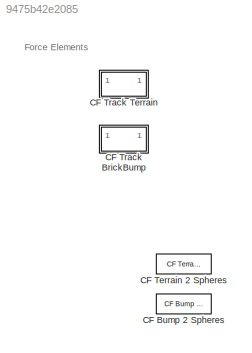
MODEL slx_9475b42e2085
KIND library
CONFIG SolverName = VariableStepAuto
BLOCK [Reference] CF Bump 2 Spheres  REF=sm_rollerV_lib_terrain_contact_belem/CF Bump 2 Spheres
  SourceBlock = sm_rollerV_lib_terrain_contact_belem/CF Bump 2 Spheres
  SourceType = Contact Force, Two Spheres to Bump
BLOCK [Reference] CF Terrain 2 Spheres  REF=sm_rollerV_lib_terrain_contact_belem/CF Terrain 2 Spheres
  SourceBlock = sm_rollerV_lib_terrain_contact_belem/CF Terrain 2 Spheres
  SourceType = Contact Force, Two Spheres to Ground
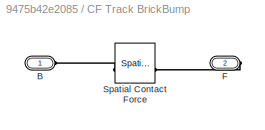
BLOCK [SubSystem] CF Track BrickBump
BLOCK [PMIOPort] CF Track BrickBump/B
  Side = Left
BLOCK [PMIOPort] CF Track BrickBump/F
  Port = 2
  Side = Right
BLOCK [Reference] CF Track BrickBump/Spatial Contact Force  REF=sm_lib/Forces and
Torques/Spatial
Contact Force
  SourceBlock = sm_lib/Forces and\nTorques/Spatial\nContact Force
  SourceType = Spatial\nContact Force
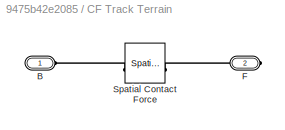
BLOCK [SubSystem] CF Track Terrain
BLOCK [PMIOPort] CF Track Terrain/B
  Side = Left
BLOCK [PMIOPort] CF Track Terrain/F
  Port = 2
  Side = Right
BLOCK [Reference] CF Track Terrain/Spatial Contact Force  REF=sm_lib/Forces and
Torques/Spatial
Contact Force
  SourceBlock = sm_lib/Forces and\nTorques/Spatial\nContact Force
  SourceType = Spatial\nContact Force
ANNOTATION (root): Force Elements
PLINE CF Track BrickBump/B:RConn1 -- CF Track BrickBump/Spatial Contact Force:LConn1
PLINE CF Track BrickBump/F:RConn1 -- CF Track BrickBump/Spatial Contact Force:RConn1
PLINE CF Track Terrain/B:RConn1 -- CF Track Terrain/Spatial Contact Force:LConn1
PLINE CF Track Terrain/F:RConn1 -- CF Track Terrain/Spatial Contact Force:RConn1
